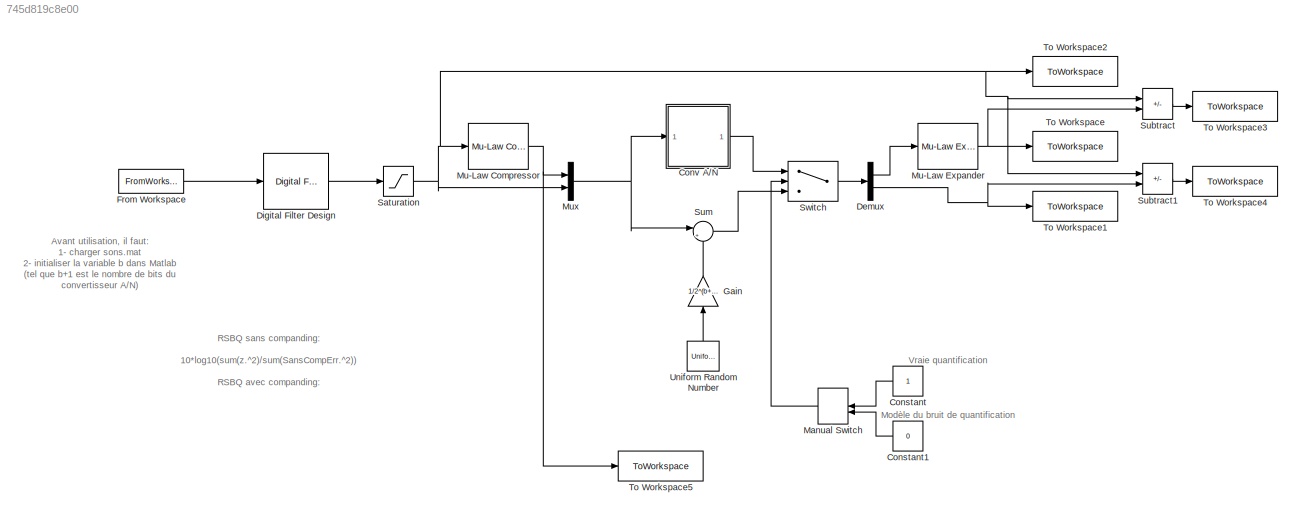
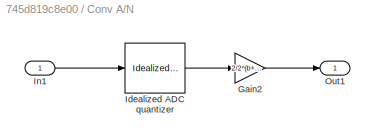
MODEL slx_745d819c8e00
KIND model
CONFIG AbsTol = auto
CONFIG EnableMultiTasking = on
CONFIG FixedStep = auto
CONFIG MaxStep = auto
CONFIG MinStep = auto
CONFIG RelTol = 1e-3
CONFIG SampleTimeConstraint = Unconstrained
CONFIG SolverName = FixedStepDiscrete
CONFIG StartTime = 0.0
CONFIG StopTime = 7.5
BLOCK [Constant] Constant
  NameLocation = top
BLOCK [Constant] Constant1
  NameLocation = top
  Value = 0
BLOCK [SubSystem] Conv A//N
  Ports = [1, 1]
  RequestExecContextInheritance = off
BLOCK [Gain] Conv A//N/Gain2
  Gain = 2/2^(b+1)
BLOCK [Reference] Conv A//N/Idealized ADC quantizer  REF=simulink_extras/Additional
Discrete/Idealized ADC quantizer
  AttributesFormatString = (settings: %<NumberOfConverterBits>-bit converter\nVmin: %<Vmin>, Vmax: %<Vmax>)
  Ports = [1, 1]
  SourceBlock = simulink_extras/Additional\nDiscrete/Idealized ADC quantizer
  SourceProductBaseCode = SL
  SourceType = IdealADC
BLOCK [Inport] Conv A//N/In1
BLOCK [Outport] Conv A//N/Out1
  VectorParamsAs1DForOutWhenUnconnected = off
BLOCK [Demux] Demux
  Outputs = 2
  Ports = [1, 2]
BLOCK [Reference] Digital Filter Design  REF=dsparch4/Digital
Filter Design
  Ports = [1, 1]
  SourceBlock = dsparch4/Digital\nFilter Design
  SourceProductBaseCode = DS
  SourceType = Digital Filter Design
  UserDataPersistent = on
BLOCK [FromWorkspace] From Workspace
  Interpolate = off
  OutputAfterFinalValue = Setting to zero
  SampleTime = 6.25e-5
  VariableName = Sonf16
BLOCK [Gain] Gain
  Gain = 1/2^(b+1)
  NameLocation = right
BLOCK [ManualSwitch] Manual Switch
  CurrentSetting = 0
  NameLocation = top
BLOCK [Reference] Mu-Law Compressor  REF=commsrccod2/Mu-Law
Compressor
  Ports = [1, 1]
  SourceBlock = commsrccod2/Mu-Law\nCompressor
  SourceProductBaseCode = CM
  SourceType = Mu-Law Compressor
BLOCK [Reference] Mu-Law Expander  REF=commsrccod2/Mu-Law
Expander
  Ports = [1, 1]
  SourceBlock = commsrccod2/Mu-Law\nExpander
  SourceProductBaseCode = CM
  SourceType = Mu-Law Expander
BLOCK [Mux] Mux
  DisplayOption = bar
  Inputs = 2
  Ports = [2, 1]
BLOCK [Saturate] Saturation
  LowerLimit = -1
  UpperLimit = 1
BLOCK [Sum] Subtract
  IconShape = rectangular
  Inputs = +-
  Ports = [2, 1]
BLOCK [Sum] Subtract1
  IconShape = rectangular
  Inputs = +-
  Ports = [2, 1]
BLOCK [Sum] Sum
  Inputs = |++
  Ports = [2, 1]
BLOCK [Switch] Switch
  Criteria = u2 > Threshold
  InputSameDT = off
  SaturateOnIntegerOverflow = off
BLOCK [ToWorkspace] To Workspace
  MaxDataPoints = inf
  Ports = [1]
  SampleTime = -1
  Save2DSignal = 2-D array (concatenate along first dimension)
  VariableName = AvecCompander
BLOCK [ToWorkspace] To Workspace1
  MaxDataPoints = inf
  Ports = [1]
  SampleTime = -1
  VariableName = SansCompander
BLOCK [ToWorkspace] To Workspace2
  MaxDataPoints = inf
  Ports = [1]
  SampleTime = -1
  VariableName = z
BLOCK [ToWorkspace] To Workspace3
  MaxDataPoints = inf
  Ports = [1]
  SampleTime = -1
  Save2DSignal = 2-D array (concatenate along first dimension)
  VariableName = AvecCompErr
BLOCK [ToWorkspace] To Workspace4
  MaxDataPoints = inf
  Ports = [1]
  SampleTime = -1
  Save2DSignal = 2-D array (concatenate along first dimension)
  VariableName = SansCompErr
BLOCK [ToWorkspace] To Workspace5
  MaxDataPoints = inf
  Ports = [1]
  SampleTime = -1
  VariableName = z1
BLOCK [UniformRandomNumber] Uniform Random Number
  NameLocation = right
  SampleTime = 6.25e-5
ANNOTATION (root): Avant utilisation, il faut: 1- charger sons.mat 2- initialiser la variable b dans Matlab (tel que b+1 est le nombre de bits du convertisseur A/N)
ANNOTATION (root): Modèle du bruit de quantification
ANNOTATION (root): RSBQ sans companding: 10*log10(sum(z.^2)/sum(SansCompErr.^2)) RSBQ avec companding: 10*log10(sum(z.^2)/sum(AvecCompErr.^2))
ANNOTATION (root): Vraie quantification
LINE Constant1:1 -> Manual Switch:2
LINE Constant:1 -> Manual Switch:1
LINE Conv A//N/Gain2:1 -> Conv A//N/Out1:1
LINE Conv A//N/Idealized ADC quantizer:1 -> Conv A//N/Gain2:1
LINE Conv A//N/In1:1 -> Conv A//N/Idealized ADC quantizer:1
LINE Conv A//N:1 -> Switch:1
LINE Demux:1 -> Mu-Law Expander:1
NET Demux:2 -> Subtract1:2, To Workspace1:1
LINE Digital Filter Design:1 -> Saturation:1
LINE From Workspace:1 -> Digital Filter Design:1
LINE Gain:1 -> Sum:2
LINE Manual Switch:1 -> Switch:2
NET Mu-Law Compressor:1 -> Mux:1, To Workspace5:1
NET Mu-Law Expander:1 -> Subtract:2, To Workspace:1
NET Mux:1 -> Conv A//N:1, Sum:1
NET Saturation:1 -> Mu-Law Compressor:1, Mux:2, Subtract1:1, Subtract:1, To Workspace2:1
LINE Subtract1:1 -> To Workspace4:1
LINE Subtract:1 -> To Workspace3:1
LINE Sum:1 -> Switch:3
LINE Switch:1 -> Demux:1
LINE Uniform Random Number:1 -> Gain:1
note: NET lines group one-source signal fan-out (src -> all destinations, sorted); 1:1 wires keep LINE
